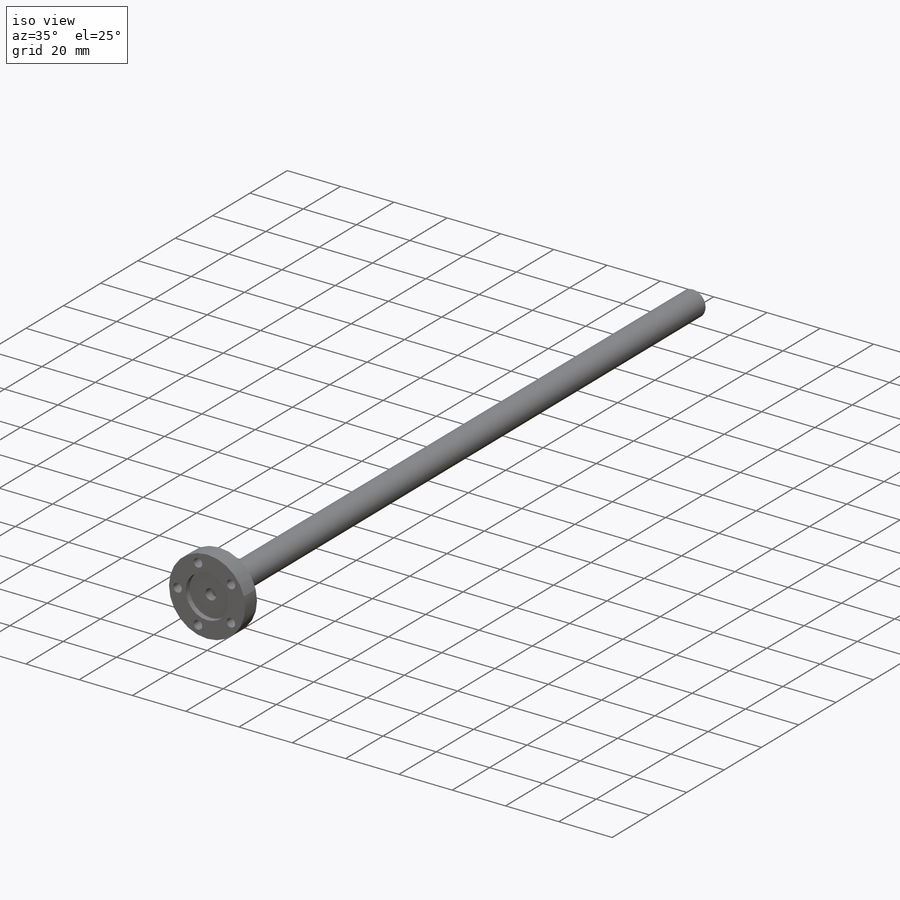
[diagram: iso view]
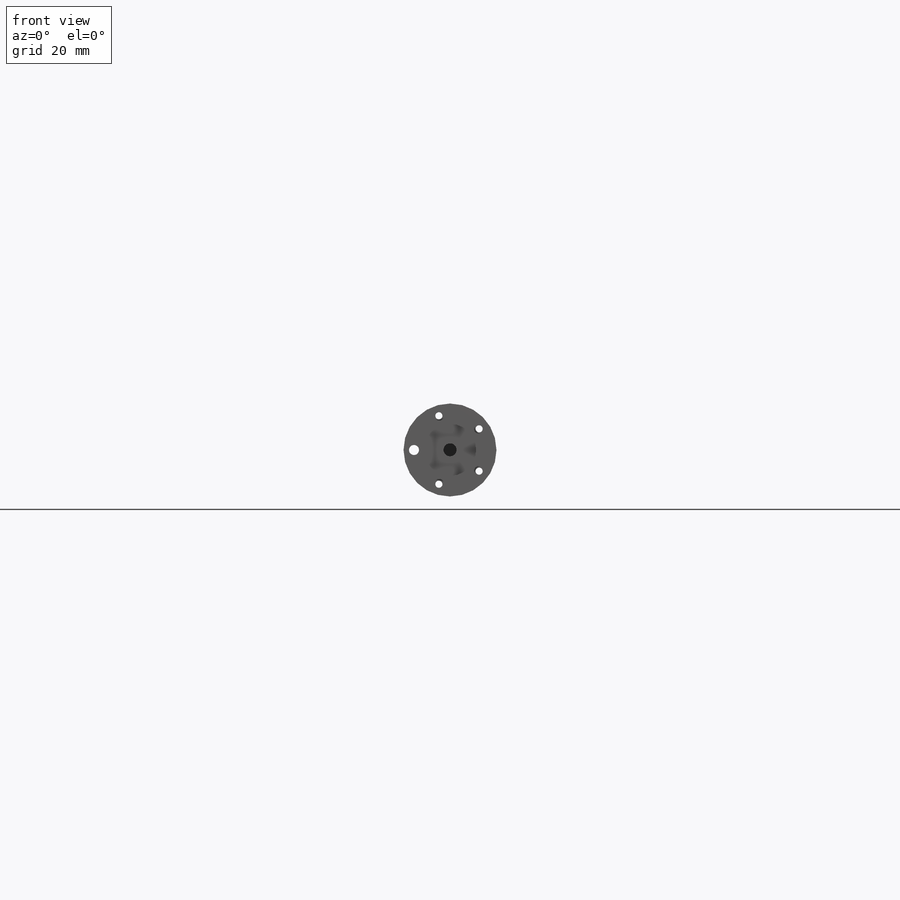
[diagram: front view]
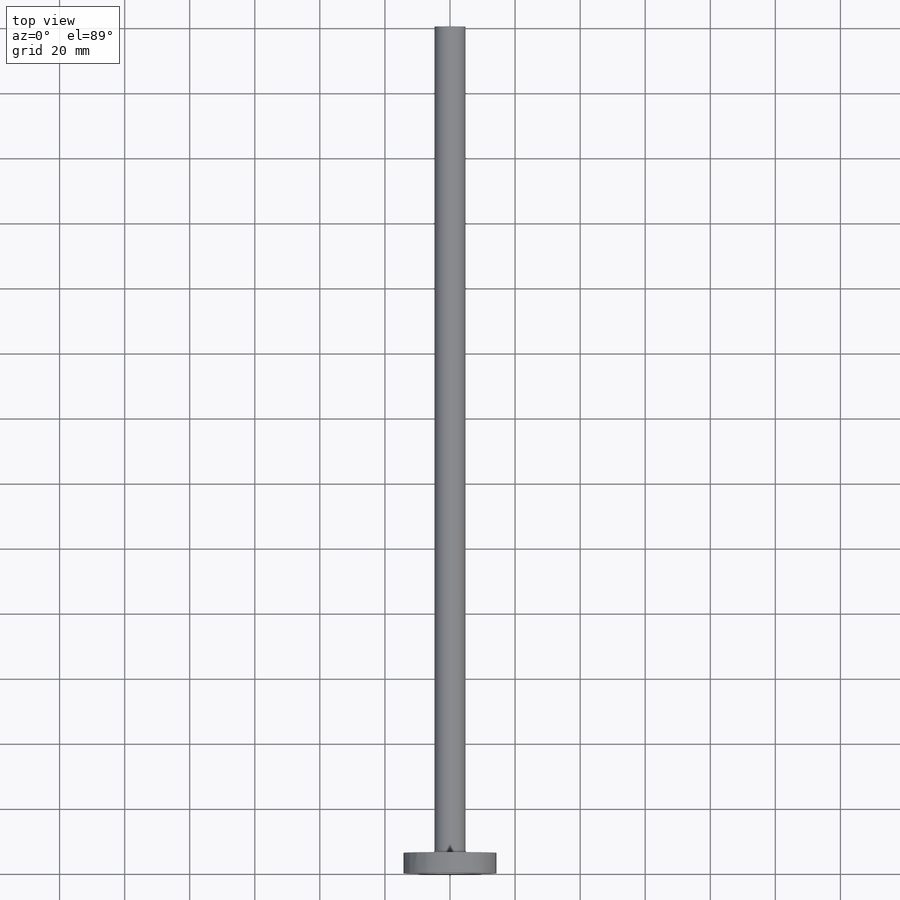
[diagram: top view]
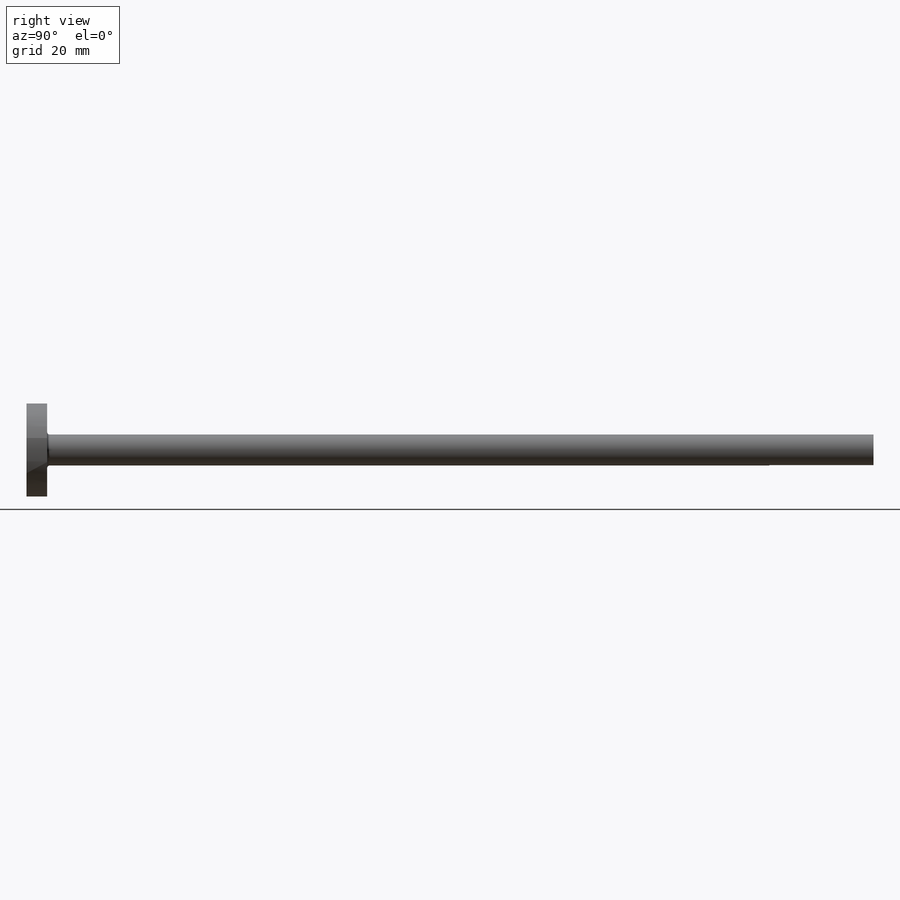
[diagram: right view]
SOLIDWORKS PART (.sldprt)
format: sldprt  version: not decoded by parser v0  size: 241,152 bytes
history: native  units: mm
features: sketch x14, hole x5, material x1, revolve x1, extrude x1, cut_extrude x1, plane x1, cut_revolve x1, fillet x1 (+16 scaffold rows collapsed)
feature tree (42):
  scaffold x16  (default folders/planes/origin — collapsed)
  material  "Material <not specified>"
  sketch  "Sketch1"
  revolve  "Revolve1"  Angle=360deg
  sketch  "Sketch2"  dims[D1=9.525mm]
  extrude  "Boss-Extrude1"  Depth=254mm
  sketch  "Sketch3"  dims[D1=~0.872983mm D2=2.0mm]
  cut_extrude  "Cut-Extrude1"  Depth=32.004mm
  plane  "Plane1"
  sketch  "Sketch4"
  cut_revolve  "Cut-Revolve1"  Angle=360deg
  hole  "Hole1"  Diameter=2.1844mm Depth=260.35mm
  sketch  "Sketch6"
  sketch  "Sketch5"  dims[Diameter=2.1844mm Depth=260.35mm C-Bore Diameter=3.175mm C-Bore Depth=4.7625mm]
  hole  "Hole2"  Diameter=2.1844mm Depth=260.35mm
  sketch  "Sketch8"
  sketch  "Sketch7"  dims[Diameter=2.1844mm Depth=260.35mm C-Bore Diameter=3.175mm C-Bore Depth=4.7625mm]
  hole  "Hole3"  Diameter=2.1844mm Depth=260.35mm
  sketch  "Sketch10"
  sketch  "Sketch9"  dims[Diameter=2.1844mm Depth=260.35mm C-Bore Diameter=3.175mm C-Bore Depth=4.7625mm]
  hole  "Hole4"  Diameter=2.1844mm Depth=260.35mm
  sketch  "Sketch12"
  sketch  "Sketch11"  dims[Diameter=2.1844mm Depth=260.35mm C-Bore Diameter=3.175mm C-Bore Depth=4.7625mm]
  hole  "Hole5"  Diameter=4mm Depth=5mm
  sketch  "Sketch14"
  sketch  "Sketch13"  dims[Diameter=4.0mm Depth=5.0mm C-Bore Diameter=16.0mm C-Bore Depth=2.0mm]
  fillet  "Fillet1"  Radius=0.7874mm
decode coverage: 17 of 24 modeling features carry decoded parameters
note: ~ marks probable driven/reference dimensions
summary: Diameter pulled from absorbed wizard sketch
note: suppression state not decoded; provenance and decode notes live in map.json
